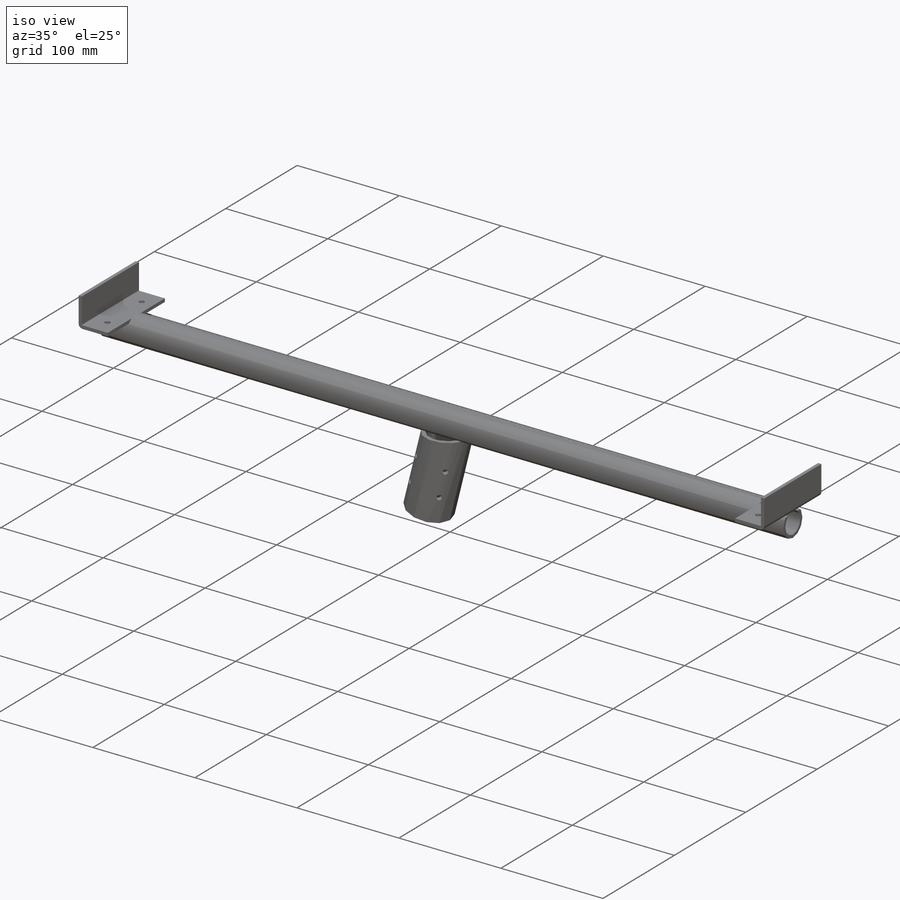
[diagram: iso view]
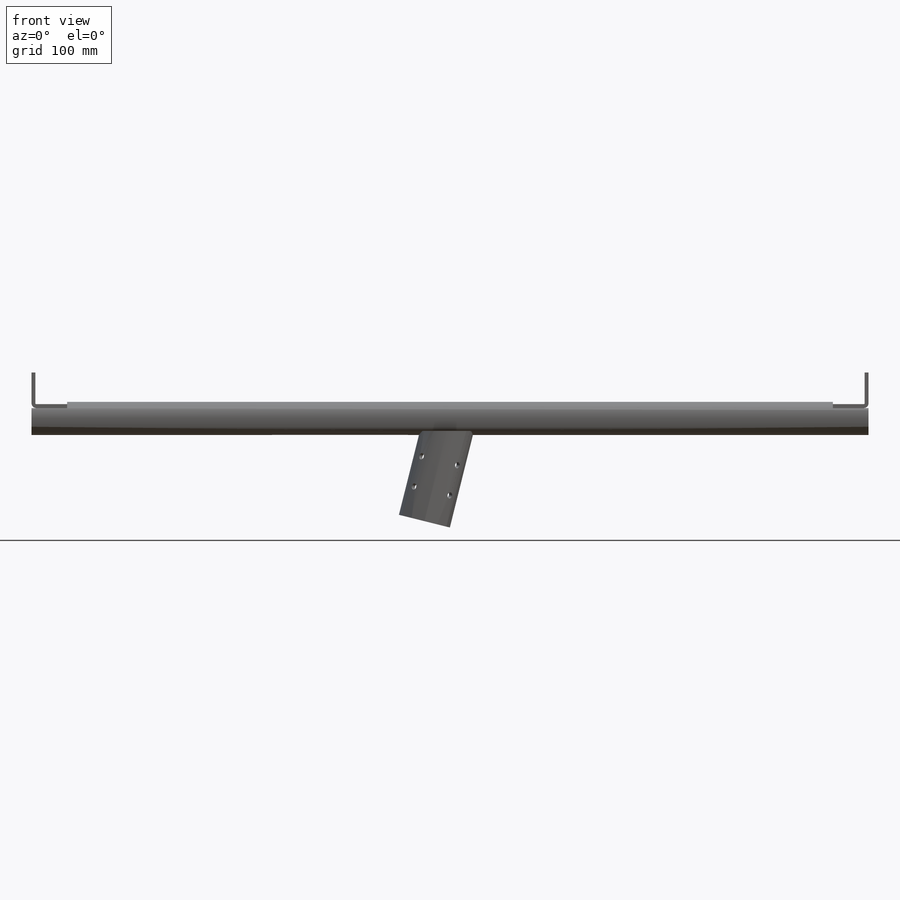
[diagram: front view]
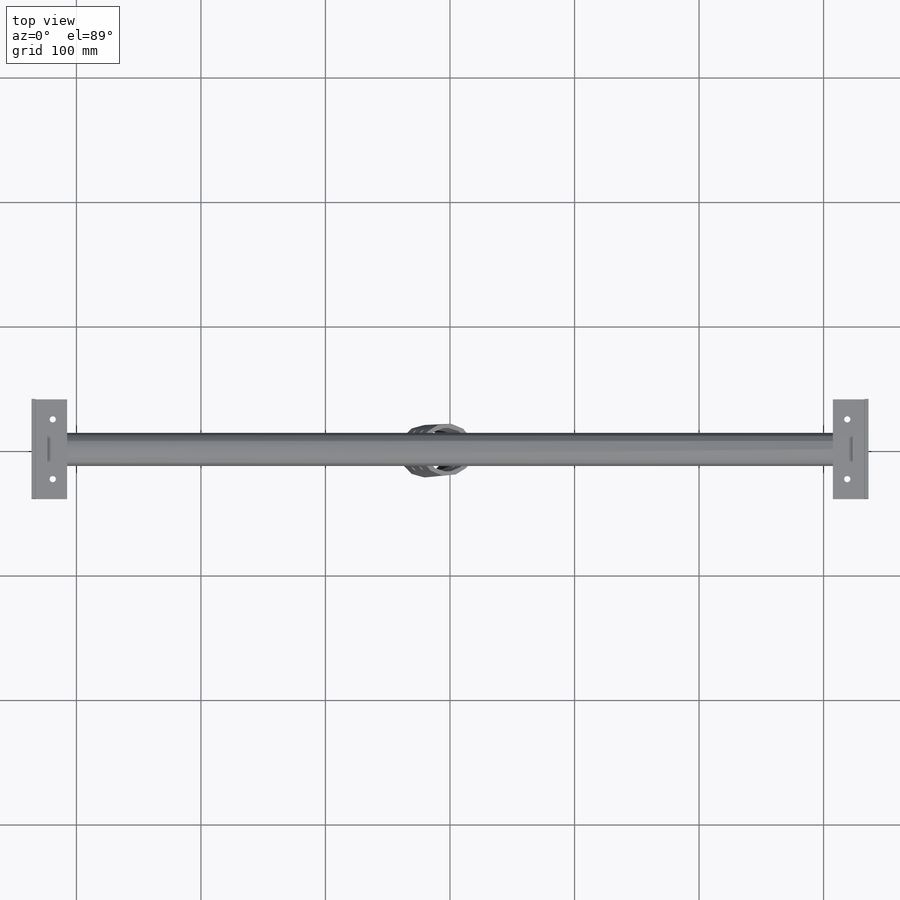
[diagram: top view]
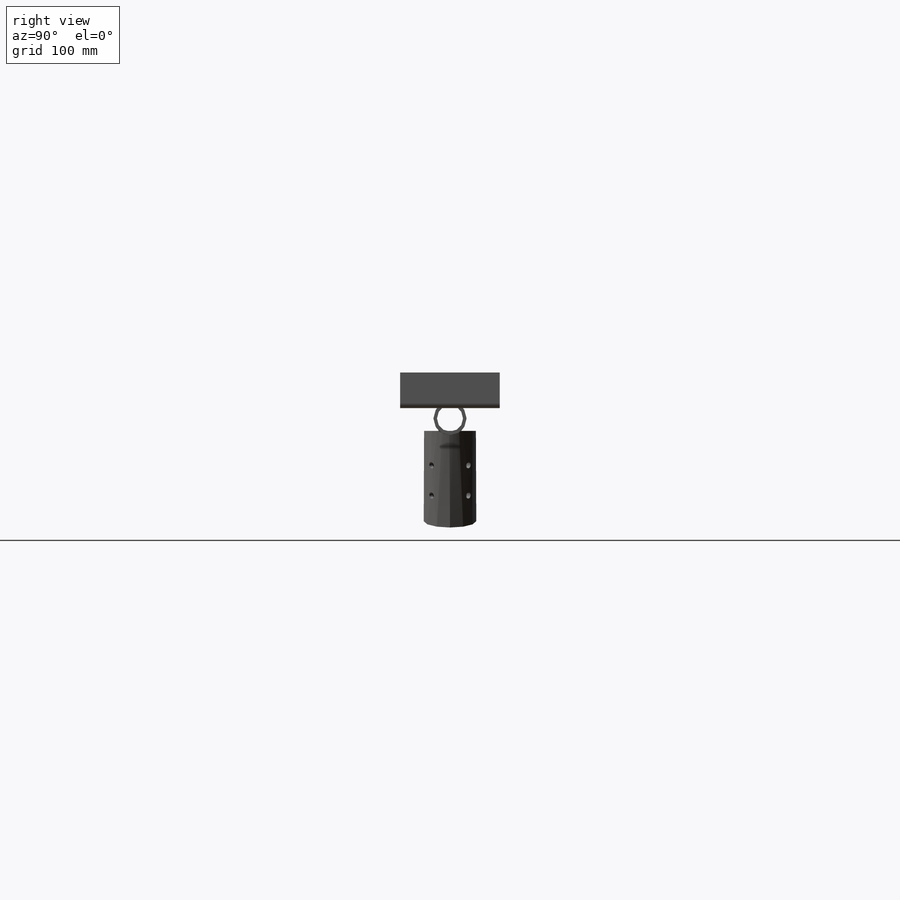
[diagram: right view]
SOLIDWORKS PART (.sldprt)
format: sldprt  version: not decoded by parser v0  size: 586,240 bytes
history: native  units: mm
features: sketch x24, sheet_metal_op x6, mirror x6, plane x3, extrude x2, hole x2, material x1, cut_extrude x1 + 5 further entries (+12 scaffold rows collapsed; 5 parser-record rows omitted)
feature tree (67):
  scaffold x12  (default folders/planes/origin — collapsed)
  material  "Alloy Steel"
  sketch  "Sketch1"  dims[D1=26.67mm D2=2.87mm]
  extrude  "Boss-Extrude1"  Depth=336.1mm
  sketch  "Sketch4"  dims[c1.D1=13.335mm c1.D2=20.0mm c1.D3=14.0mm c2.D1=5.0mm]
  cut_extrude  "Cut-Extrude3"  Depth=28.6mm
  sketch  "Sketch22"  dims[c1.D1=23.0507mm c2.D1=90.0deg c2.D2=~22.92967mm c3.D2=180.0deg c3.D3=25.4mm c3.D4=25.4mm]
  sketch  "Sketch9"  dims[D1=76.0deg]
  plane  "Plane1"
  plane  "Plane2"  Offset=10mm
  plane  "Plane3"  Offset=85mm
  sketch  "Sketch10"  dims[D1=35.04mm D2=42.164mm]
  extrude  "Boss-Extrude4"  [1 undecoded]
  sketch  "Sketch13"  dims[c1.D1=100.0mm c2.D1=45.0deg]
  hole  "#8 (0.199) Diameter Hole2"  Diameter=5.0546mm Depth=50mm
  sketch  "3DSketch4"  dims[c1.D7=42.164mm c1.D1=25.0mm c1.D2=~20.189138mm c1.D3=~15.637309mm c1.D4=32.426mm c2.D2=25.0mm c2.D3=25.0mm c2.D4=25.0mm c2.D5=50.0mm c2.D6=50.0mm c2.D7=50.0mm c2.D8=50.0mm]
  sketch  "Sketch12"  dims[hole-wizard template sketch: 47 standard entries collapsed; hole parameters kept: c15.Hole Depth=50.0mm c15.D3=~14.816244mm c15.Drill Angle=180.0deg]
  sketch  "Sketch31"  dims[c1.D1=25.4mm c1.D2=25.4mm c1.D3=25.4mm c2.D3=90.0deg c2.D4=3.175mm c2.D1=0.5mm c2.D2=0.5 c3.D3=0.0mm c3.D6=500.0mm]
  sheet_metal_op  "Base-Flange2"
  hole  "#8 (0.199) Diameter Hole4"  Diameter=5.0546mm Depth=50mm
  sketch  "Sketch37"  dims[c1.D1=48.0mm c1.D2=319.0mm c1.D3=24.0mm c2.D1=24.0mm c2.D4=319.0mm]
  sketch  "Sketch36"  dims[hole-wizard template sketch: 47 standard entries collapsed; hole parameters kept: c15.Hole Depth=50.0mm c15.D3=~14.816244mm c15.Drill Angle=180.0deg]
  mirror  "Mirror4"
  mirror  "Mirror5"
  sketch  "Sketch44"  dims[c1.D1=~307.447815mm c2.D1=14.0deg c2.D2=25.0mm]
  sketch  "Bend-Lines4"
  sketch  "Bounding-Box4"
  sheet_metal_op  "Sheet-Metal17"
  "Flat-Pattern17"
  sketch  "Bend-Lines5"
  sketch  "Bounding-Box5"
  parser-record x5  (decoder bookkeeping rows leaked as tree rows — omitted from the tree; the rows remain in map.json)
  mirror  "Sheet-Metal18"
  sheet_metal_op  "Flat-Pattern17"
  sketch  "Bend-Lines5"
  sketch  "Bounding-Box5"
  "Flatten-<BaseBend2>1"
  mirror  "Sheet-Metal19"
  sheet_metal_op  "Flat-Pattern19"
  sketch  "Bend-Lines6"
  sketch  "Bounding-Box6"
  "Flatten-<DerivedBend2>1"
  mirror  "Sheet-Metal20"
  sheet_metal_op  "Flat-Pattern20"
  sketch  "Bend-Lines7"
  sketch  "Bounding-Box7"
  "Flatten-<BaseBend2>2"
  mirror  "Sheet-Metal22"
  sheet_metal_op  "Flat-Pattern22"
  sketch  "Bend-Lines8"
  sketch  "Bounding-Box8"
  "Flatten-<DerivedBend2>2"
decode coverage: 16 of 41 modeling features carry decoded parameters; 5 rows unclassified (native names shown)
note: ~ marks probable driven/reference dimensions
note: 1 parameter value undecoded
note: suppression state not decoded; provenance and decode notes live in map.json
